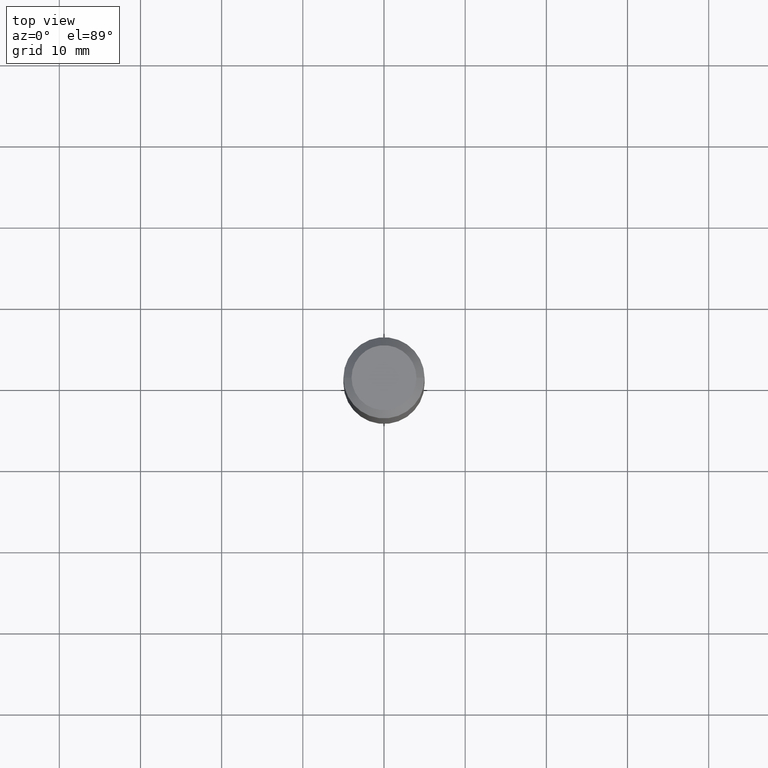
[diagram: clean part render]
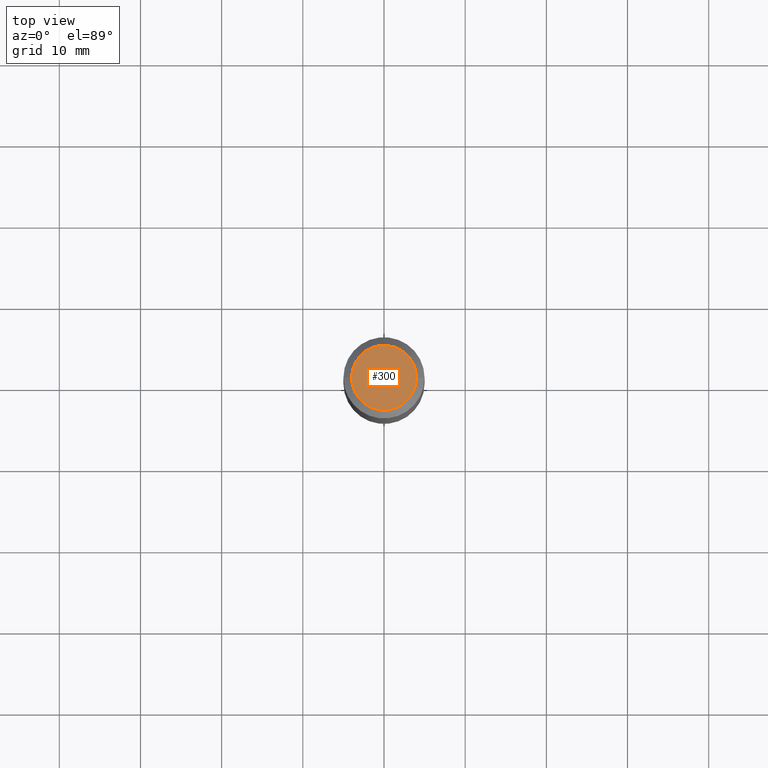
[diagram: same view with one face highlighted and labeled with its STEP entity id]
A machine part, top view. The second image highlights one B-rep face of the part: STEP entity #300.
In plain terms, the highlighted planar face has unit normal (0, -0, -1).
Its self-contained STEP definition (entity closure, byte-faithful):
#23 = AXIS2_PLACEMENT_3D ( 'NONE', #272, #48, #277 ) ;
#48 = DIRECTION ( 'NONE',  ( 2.438088387897960049E-29, -3.491481338843145188E-15, -1.000000000000000000 ) ) ;
#59 = ORIENTED_EDGE ( 'NONE', *, *, #293, .T. ) ;
#74 = ORIENTED_EDGE ( 'NONE', *, *, #315, .T. ) ;
#107 = CARTESIAN_POINT ( 'NONE',  ( -0.1574800000000000089, 1.168406772637159815E-15, 3.855188123707939751E-18 ) ) ;
#116 = CARTESIAN_POINT ( 'NONE',  ( 0.1574800000000000089, -1.284169937930321386E-15, 3.855188123724205385E-18 ) ) ;
#157 = AXIS2_PLACEMENT_3D ( 'NONE', #455, #222, #262 ) ;
#158 = PLANE ( 'NONE',  #23 ) ;
#177 = CARTESIAN_POINT ( 'NONE',  ( -9.427742298522567634E-47, 1.346031739168368355E-32, 3.855188123715870730E-18 ) ) ;
#208 = EDGE_LOOP ( 'NONE', ( #59, #74 ) ) ;
#210 = DIRECTION ( 'NONE',  ( -2.445468806185136597E-29, 3.491481338843145583E-15, 1.000000000000000000 ) ) ;
#222 = DIRECTION ( 'NONE',  ( -2.445468806185136597E-29, 3.491481338843145583E-15, 1.000000000000000000 ) ) ;
#262 = DIRECTION ( 'NONE',  ( 1.000000000000000000, -6.982962677686265922E-15, 4.876223630392693006E-29 ) ) ;
#272 = CARTESIAN_POINT ( 'NONE',  ( -4.713871149261283817E-47, 6.730158695841841775E-33, 1.927594061857935365E-18 ) ) ;
#277 = DIRECTION ( 'NONE',  ( -1.000000000000000000, 6.982962677686265922E-15, -4.876176775795935793E-29 ) ) ;
#293 = EDGE_CURVE ( 'NONE', #296, #353, #484, .T. ) ;
#296 = VERTEX_POINT ( 'NONE', #107 ) ;
#300 = ADVANCED_FACE ( 'NONE', ( #421 ), #158, .F. ) ;
#315 = EDGE_CURVE ( 'NONE', #353, #296, #389, .T. ) ;
#353 = VERTEX_POINT ( 'NONE', #116 ) ;
#369 = DIRECTION ( 'NONE',  ( 1.000000000000000000, -6.982962677686265922E-15, 4.876223630392693006E-29 ) ) ;
#389 = CIRCLE ( 'NONE', #453, 0.1574800000000000089 ) ;
#421 = FACE_OUTER_BOUND ( 'NONE', #208, .T. ) ;
#453 = AXIS2_PLACEMENT_3D ( 'NONE', #177, #210, #369 ) ;
#455 = CARTESIAN_POINT ( 'NONE',  ( -9.427742298522567634E-47, 1.346031739168368355E-32, 3.855188123715870730E-18 ) ) ;
#484 = CIRCLE ( 'NONE', #157, 0.1574800000000000089 ) ;